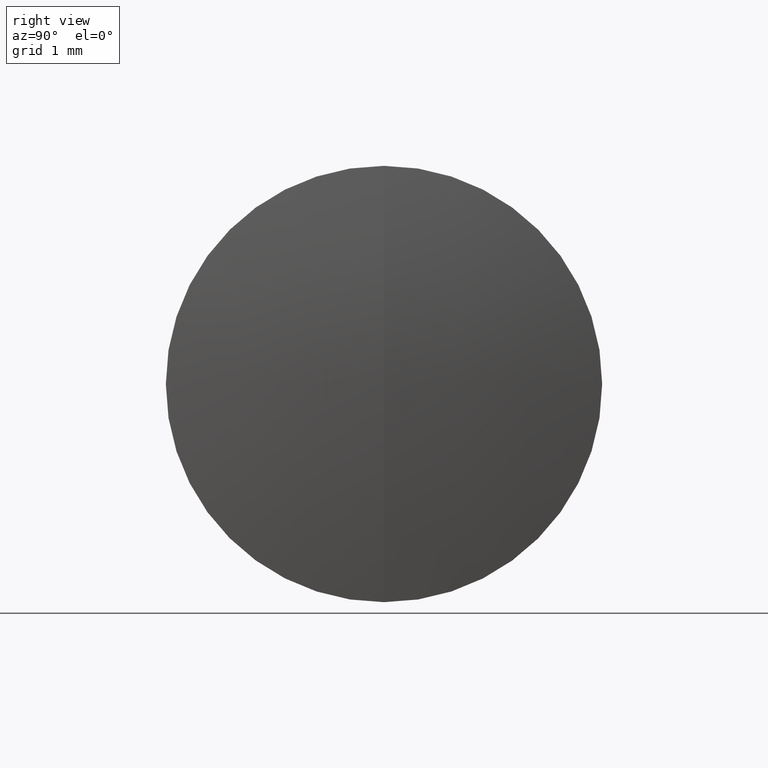
[diagram: clean part render]
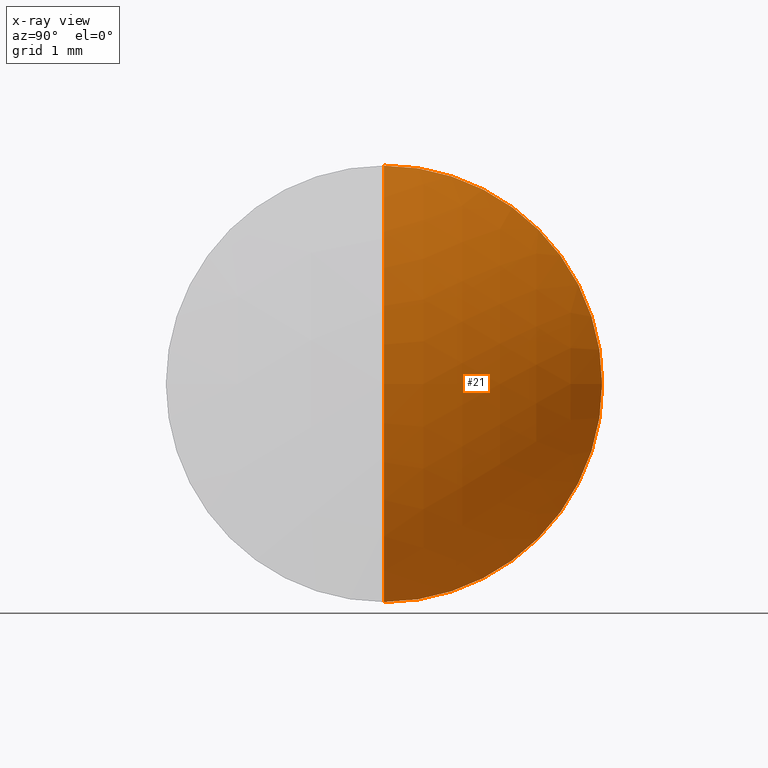
[diagram: x-ray — body ghosted, one internal face saturated and labeled with its STEP entity id]
A machine part, right view, then the same camera in x-ray: the body is ghosted and one INTERNAL B-rep face — a face not visible from any outside direction — is saturated and labeled: STEP entity #21.
In plain terms, the highlighted spherical surface has radius 3.9 mm.
Its self-contained STEP definition (entity closure, byte-faithful):
#1 = CIRCLE ( 'NONE', #298, 3.900000000000000400 ) ;
#20 = ORIENTED_EDGE ( 'NONE', *, *, #49, .F. ) ;
#21 = ADVANCED_FACE ( 'NONE', ( #193 ), #271, .T. ) ;
#49 = EDGE_CURVE ( 'NONE', #174, #231, #135, .T. ) ;
#59 = CARTESIAN_POINT ( 'NONE',  ( 0.1782143330611579400, 0.0000000000000000000, -1.863472483959460700E-017 ) ) ;
#71 = ORIENTED_EDGE ( 'NONE', *, *, #185, .T. ) ;
#77 = CARTESIAN_POINT ( 'NONE',  ( 4.078214333061158200, 0.0000000000000000000, 2.201714009941392800E-016 ) ) ;
#89 = DIRECTION ( 'NONE',  ( 0.0000000000000000000, 1.000000000000000000, 0.0000000000000000000 ) ) ;
#93 = DIRECTION ( 'NONE',  ( -1.000000000000000000, -0.0000000000000000000, -0.0000000000000000000 ) ) ;
#96 = DIRECTION ( 'NONE',  ( 0.0000000000000000000, -1.000000000000000000, 0.0000000000000000000 ) ) ;
#102 = CARTESIAN_POINT ( 'NONE',  ( 0.1782143330611579400, 0.0000000000000000000, -1.863472483959460700E-017 ) ) ;
#131 = VERTEX_POINT ( 'NONE', #326 ) ;
#135 = CIRCLE ( 'NONE', #162, 3.900000000000000400 ) ;
#147 = AXIS2_PLACEMENT_3D ( 'NONE', #59, #89, #312 ) ;
#153 = EDGE_CURVE ( 'NONE', #231, #131, #250, .T. ) ;
#162 = AXIS2_PLACEMENT_3D ( 'NONE', #102, #96, #202 ) ;
#169 = EDGE_LOOP ( 'NONE', ( #20, #71, #259 ) ) ;
#174 = VERTEX_POINT ( 'NONE', #77 ) ;
#175 = DIRECTION ( 'NONE',  ( -0.0000000000000000000, 1.000000000000000000, 1.224646799147353200E-016 ) ) ;
#185 = EDGE_CURVE ( 'NONE', #174, #131, #1, .T. ) ;
#193 = FACE_OUTER_BOUND ( 'NONE', #169, .T. ) ;
#202 = DIRECTION ( 'NONE',  ( 0.0000000000000000000, 0.0000000000000000000, -1.000000000000000000 ) ) ;
#228 = CARTESIAN_POINT ( 'NONE',  ( 0.1782143330611579400, 0.0000000000000000000, -1.863472483959460700E-017 ) ) ;
#230 = CARTESIAN_POINT ( 'NONE',  ( 3.171540242480312100, 0.0000000000000000000, 0.0000000000000000000 ) ) ;
#231 = VERTEX_POINT ( 'NONE', #300 ) ;
#240 = AXIS2_PLACEMENT_3D ( 'NONE', #230, #93, #246 ) ;
#244 = DIRECTION ( 'NONE',  ( 0.0000000000000000000, -1.224646799147353200E-016, 1.000000000000000000 ) ) ;
#246 = DIRECTION ( 'NONE',  ( 0.0000000000000000000, 0.0000000000000000000, 1.000000000000000000 ) ) ;
#250 = CIRCLE ( 'NONE', #240, 2.500000000000000400 ) ;
#259 = ORIENTED_EDGE ( 'NONE', *, *, #153, .F. ) ;
#271 = SPHERICAL_SURFACE ( 'NONE', #147, 3.900000000000000400 ) ;
#298 = AXIS2_PLACEMENT_3D ( 'NONE', #228, #175, #244 ) ;
#300 = CARTESIAN_POINT ( 'NONE',  ( 3.171540242480312100, 0.0000000000000000000, 2.500000000000000400 ) ) ;
#312 = DIRECTION ( 'NONE',  ( 0.0000000000000000000, 0.0000000000000000000, 1.000000000000000000 ) ) ;
#326 = CARTESIAN_POINT ( 'NONE',  ( 3.171540242480312100, 3.061616997868383600E-016, -2.500000000000000400 ) ) ;